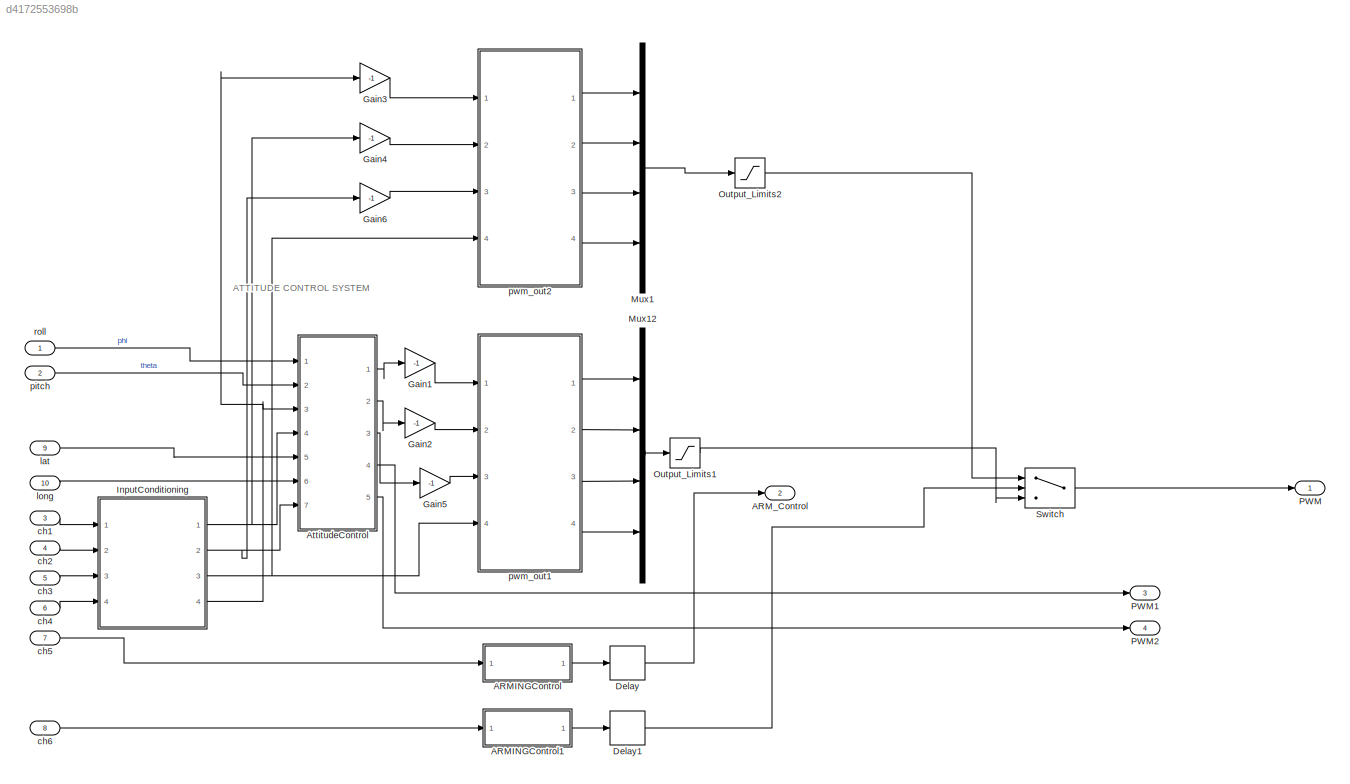
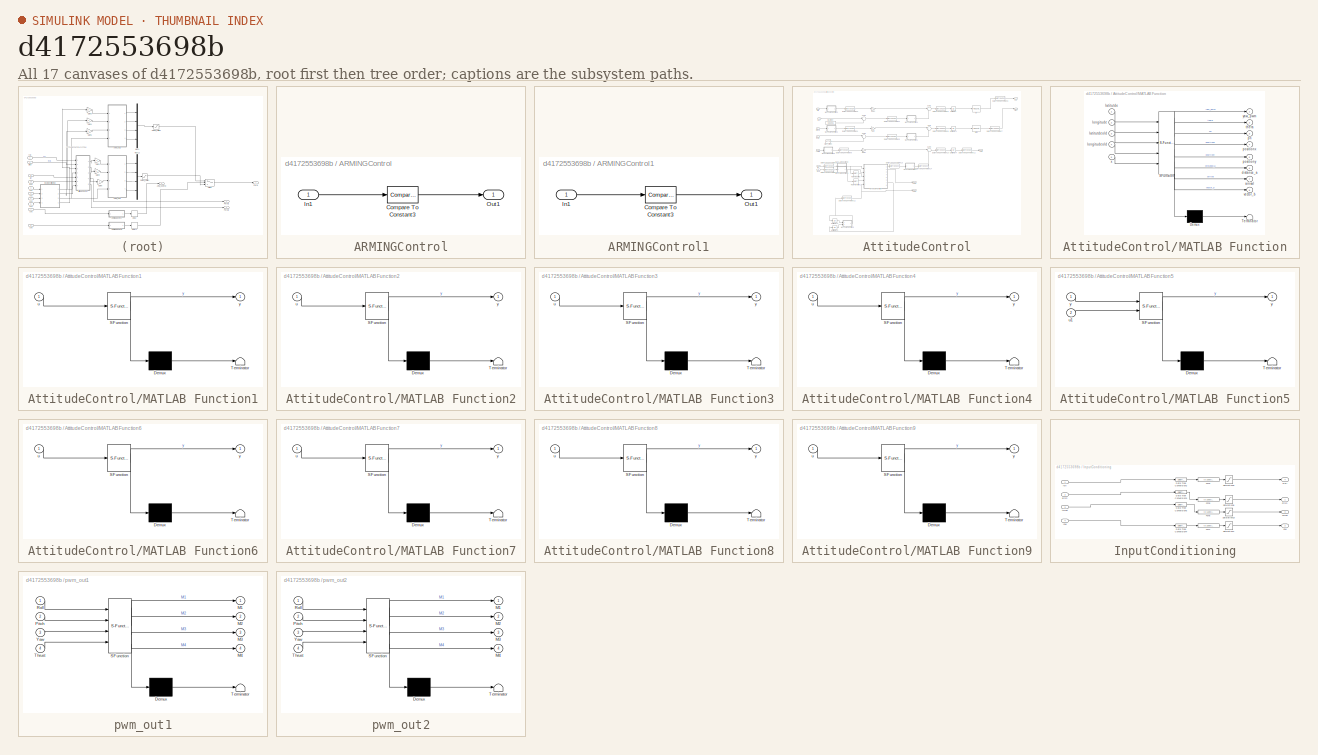
[diagram: thumbnail index - all 17 canvases of the model, root first then tree order]
MODEL slx_d4172553698b
KIND model
CONFIG AbsTol = auto
CONFIG EnableMultiTasking = off
CONFIG FixedStep = auto
CONFIG MaxStep = auto
CONFIG MinStep = auto
CONFIG PostLoadFcn = kFactor = 1.2;\n\nKpRollAttitude = 0.630138625117681 / kFactor;\nKiRollAttitude = 0.0552303199591522 / kFactor;\n\nKpPitchAttitude = 0.630138625117681 / kFactor;\nKiPitchAttitude = 0.0552303199591522 / kFactor;\n\nKpRollRate = 1.31533836563383 / kFactor;\nKiRollRate = 0.460338699849681 / kFactor;\n\nKpPitchRate = 1.31533836563383 / kFactor;\nKiPitchRate = 0.460338699849681 / kFactor;\n\nKpYawRate = 1.3153383656...<+57ch>
CONFIG RelTol = 1e-3
CONFIG SampleTimeConstraint = Unconstrained
CONFIG Solver = FixedStepDiscrete
CONFIG SolverName = FixedStepDiscrete
CONFIG StartTime = 0.0
CONFIG StopTime = inf
BLOCK [SubSystem] ARMINGControl
  Ports = [1, 1]
  RequestExecContextInheritance = off
  Variant = off
BLOCK [Reference] ARMINGControl/Compare To Constant3  REF=simulink/Logic and Bit
Operations/Compare
To Constant
  Ports = [1, 1]
  SourceBlock = simulink/Logic and Bit\nOperations/Compare\nTo Constant
  SourceType = Compare To Constant
BLOCK [Inport] ARMINGControl/In1
  IconDisplay = Port number
BLOCK [Outport] ARMINGControl/Out1
  IconDisplay = Port number
BLOCK [SubSystem] ARMINGControl1
  Ports = [1, 1]
  RequestExecContextInheritance = off
  Variant = off
BLOCK [Reference] ARMINGControl1/Compare To Constant3  REF=simulink/Logic and Bit
Operations/Compare
To Constant
  Ports = [1, 1]
  SourceBlock = simulink/Logic and Bit\nOperations/Compare\nTo Constant
  SourceType = Compare To Constant
BLOCK [Inport] ARMINGControl1/In1
  IconDisplay = Port number
BLOCK [Outport] ARMINGControl1/Out1
  IconDisplay = Port number
BLOCK [Outport] ARM_Control
  IconDisplay = Port number
  Port = 2
  PortDimensions = 1
  SamplingMode = Sample based
  SignalType = real
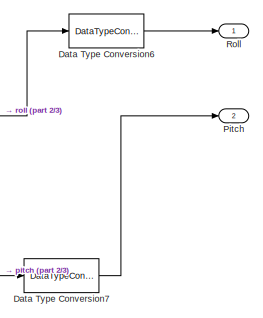
[diagram: AttitudeControl - part 1/3, top right region]
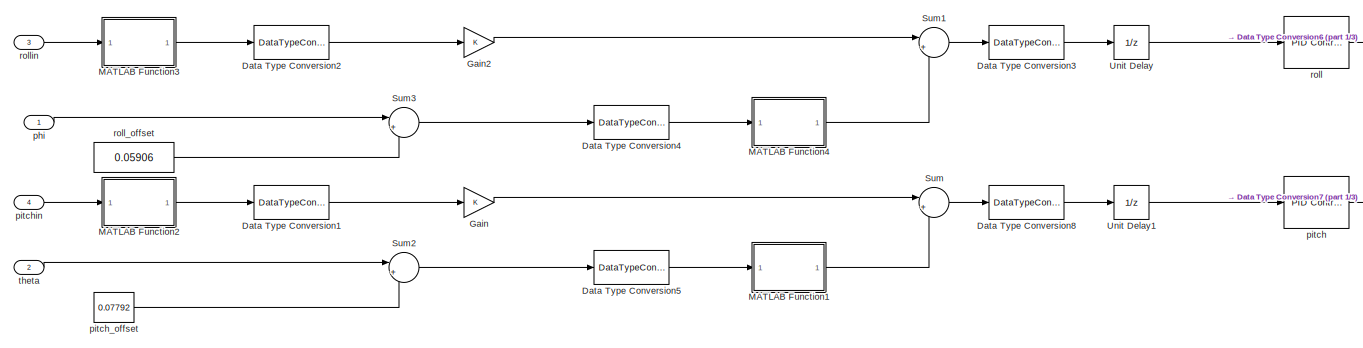
[diagram: AttitudeControl - part 2/3, full width, top band]
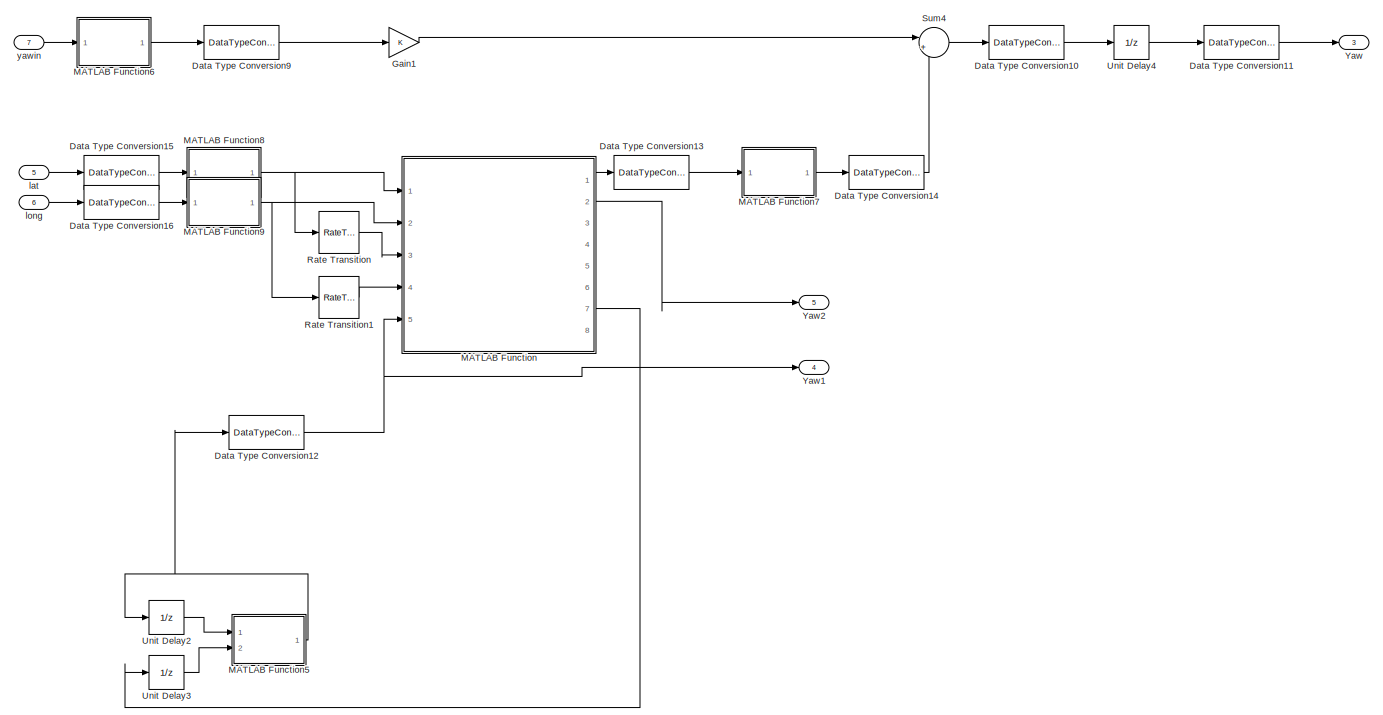
[diagram: AttitudeControl - part 3/3, full width, bottom band]
BLOCK [SubSystem] AttitudeControl
  Ports = [7, 5]
  RequestExecContextInheritance = off
  Variant = off
BLOCK [DataTypeConversion] AttitudeControl/Data Type Conversion1
  OutDataTypeStr = single
  RndMeth = Floor
  SaturateOnIntegerOverflow = off
BLOCK [DataTypeConversion] AttitudeControl/Data Type Conversion10
  OutDataTypeStr = double
  RndMeth = Floor
  SaturateOnIntegerOverflow = off
BLOCK [DataTypeConversion] AttitudeControl/Data Type Conversion11
  OutDataTypeStr = single
  RndMeth = Floor
  SaturateOnIntegerOverflow = off
BLOCK [DataTypeConversion] AttitudeControl/Data Type Conversion12
  OutDataTypeStr = single
  RndMeth = Floor
  SaturateOnIntegerOverflow = off
BLOCK [DataTypeConversion] AttitudeControl/Data Type Conversion13
  OutDataTypeStr = double
  RndMeth = Floor
  SaturateOnIntegerOverflow = off
BLOCK [DataTypeConversion] AttitudeControl/Data Type Conversion14
  OutDataTypeStr = single
  RndMeth = Floor
  SaturateOnIntegerOverflow = off
BLOCK [DataTypeConversion] AttitudeControl/Data Type Conversion15
  OutDataTypeStr = single
  RndMeth = Floor
  SaturateOnIntegerOverflow = off
BLOCK [DataTypeConversion] AttitudeControl/Data Type Conversion16
  OutDataTypeStr = single
  RndMeth = Floor
  SaturateOnIntegerOverflow = off
BLOCK [DataTypeConversion] AttitudeControl/Data Type Conversion2
  OutDataTypeStr = single
  RndMeth = Floor
  SaturateOnIntegerOverflow = off
BLOCK [DataTypeConversion] AttitudeControl/Data Type Conversion3
  OutDataTypeStr = double
  RndMeth = Floor
  SaturateOnIntegerOverflow = off
BLOCK [DataTypeConversion] AttitudeControl/Data Type Conversion4
  OutDataTypeStr = single
  RndMeth = Floor
  SaturateOnIntegerOverflow = off
BLOCK [DataTypeConversion] AttitudeControl/Data Type Conversion5
  OutDataTypeStr = single
  RndMeth = Floor
  SaturateOnIntegerOverflow = off
BLOCK [DataTypeConversion] AttitudeControl/Data Type Conversion6
  OutDataTypeStr = single
  RndMeth = Floor
  SaturateOnIntegerOverflow = off
BLOCK [DataTypeConversion] AttitudeControl/Data Type Conversion7
  OutDataTypeStr = single
  RndMeth = Floor
  SaturateOnIntegerOverflow = off
BLOCK [DataTypeConversion] AttitudeControl/Data Type Conversion8
  OutDataTypeStr = double
  RndMeth = Floor
  SaturateOnIntegerOverflow = off
BLOCK [DataTypeConversion] AttitudeControl/Data Type Conversion9
  OutDataTypeStr = single
  RndMeth = Floor
  SaturateOnIntegerOverflow = off
BLOCK [Gain] AttitudeControl/Gain
  OutDataTypeStr = Inherit: Inherit via internal rule
  ParamDataTypeStr = Inherit: Inherit via internal rule
  SaturateOnIntegerOverflow = off
BLOCK [Gain] AttitudeControl/Gain1
  OutDataTypeStr = Inherit: Inherit via internal rule
  ParamDataTypeStr = Inherit: Inherit via internal rule
  SaturateOnIntegerOverflow = off
BLOCK [Gain] AttitudeControl/Gain2
  OutDataTypeStr = Inherit: Inherit via internal rule
  ParamDataTypeStr = Inherit: Inherit via internal rule
  SaturateOnIntegerOverflow = off
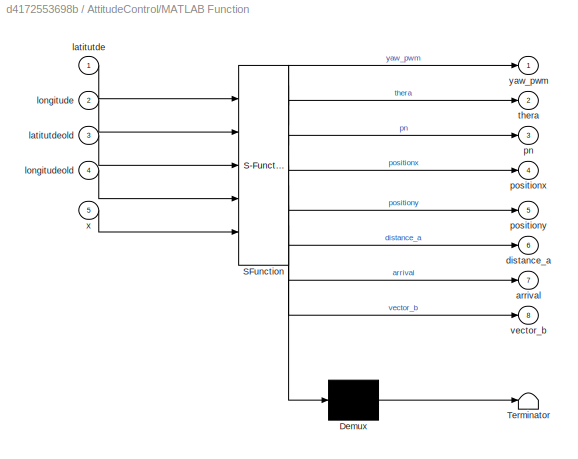
BLOCK [SubSystem] AttitudeControl/MATLAB Function
  ErrorFcn = Stateflow.Translate.translate
  PermitHierarchicalResolution = ExplicitOnly
  Ports = [5, 8]
  RequestExecContextInheritance = off
  SFBlockType = MATLAB Function
  TreatAsAtomicUnit = on
  Variant = off
BLOCK [Demux] AttitudeControl/MATLAB Function/ Demux 
  Outputs = 1
  Ports = [1, 1]
BLOCK [S-Function] AttitudeControl/MATLAB Function/ SFunction 
  EnableBusSupport = on
  FunctionName = sf_sfun
  PortCounts = [5 9]
  Ports = [5, 9]
  SFcnIsStateOwnerBlock = off
  SFunctionDeploymentMode = off
  Tag = Stateflow S-Function px4demo_attitude_control20180822 2
BLOCK [Terminator] AttitudeControl/MATLAB Function/ Terminator 
BLOCK [Outport] AttitudeControl/MATLAB Function/arrival
  IconDisplay = Port number
  Port = 7
BLOCK [Outport] AttitudeControl/MATLAB Function/distance_a
  IconDisplay = Port number
  Port = 6
BLOCK [Inport] AttitudeControl/MATLAB Function/latitutde
  IconDisplay = Port number
BLOCK [Inport] AttitudeControl/MATLAB Function/latitutdeold
  IconDisplay = Port number
  Port = 3
BLOCK [Inport] AttitudeControl/MATLAB Function/longitude
  IconDisplay = Port number
  Port = 2
BLOCK [Inport] AttitudeControl/MATLAB Function/longitudeold
  IconDisplay = Port number
  Port = 4
BLOCK [Outport] AttitudeControl/MATLAB Function/pn
  IconDisplay = Port number
  Port = 3
BLOCK [Outport] AttitudeControl/MATLAB Function/positionx
  IconDisplay = Port number
  Port = 4
BLOCK [Outport] AttitudeControl/MATLAB Function/positiony
  IconDisplay = Port number
  Port = 5
BLOCK [Outport] AttitudeControl/MATLAB Function/thera
  IconDisplay = Port number
  Port = 2
BLOCK [Outport] AttitudeControl/MATLAB Function/vector_b
  IconDisplay = Port number
  Port = 8
BLOCK [Inport] AttitudeControl/MATLAB Function/x
  IconDisplay = Port number
  Port = 5
BLOCK [Outport] AttitudeControl/MATLAB Function/yaw_pwm
  IconDisplay = Port number
BLOCK [SubSystem] AttitudeControl/MATLAB Function1
  ErrorFcn = Stateflow.Translate.translate
  PermitHierarchicalResolution = ExplicitOnly
  Ports = [1, 1]
  RequestExecContextInheritance = off
  SFBlockType = MATLAB Function
  TreatAsAtomicUnit = on
  Variant = off
BLOCK [Demux] AttitudeControl/MATLAB Function1/ Demux 
  Outputs = 1
  Ports = [1, 1]
BLOCK [S-Function] AttitudeControl/MATLAB Function1/ SFunction 
  EnableBusSupport = on
  FunctionName = sf_sfun
  PortCounts = [1 2]
  Ports = [1, 2]
  SFcnIsStateOwnerBlock = off
  SFunctionDeploymentMode = off
  Tag = Stateflow S-Function px4demo_attitude_control20180822 1
BLOCK [Terminator] AttitudeControl/MATLAB Function1/ Terminator 
BLOCK [Inport] AttitudeControl/MATLAB Function1/u
  IconDisplay = Port number
BLOCK [Outport] AttitudeControl/MATLAB Function1/y
  IconDisplay = Port number
BLOCK [SubSystem] AttitudeControl/MATLAB Function2
  ErrorFcn = Stateflow.Translate.translate
  PermitHierarchicalResolution = ExplicitOnly
  Ports = [1, 1]
  RequestExecContextInheritance = off
  SFBlockType = MATLAB Function
  TreatAsAtomicUnit = on
  Variant = off
BLOCK [Demux] AttitudeControl/MATLAB Function2/ Demux 
  Outputs = 1
  Ports = [1, 1]
BLOCK [S-Function] AttitudeControl/MATLAB Function2/ SFunction 
  EnableBusSupport = on
  FunctionName = sf_sfun
  PortCounts = [1 2]
  Ports = [1, 2]
  SFcnIsStateOwnerBlock = off
  SFunctionDeploymentMode = off
  Tag = Stateflow S-Function px4demo_attitude_control20180822 5
BLOCK [Terminator] AttitudeControl/MATLAB Function2/ Terminator 
BLOCK [Inport] AttitudeControl/MATLAB Function2/u
  IconDisplay = Port number
BLOCK [Outport] AttitudeControl/MATLAB Function2/y
  IconDisplay = Port number
BLOCK [SubSystem] AttitudeControl/MATLAB Function3
  ErrorFcn = Stateflow.Translate.translate
  PermitHierarchicalResolution = ExplicitOnly
  Ports = [1, 1]
  RequestExecContextInheritance = off
  SFBlockType = MATLAB Function
  TreatAsAtomicUnit = on
  Variant = off
BLOCK [Demux] AttitudeControl/MATLAB Function3/ Demux 
  Outputs = 1
  Ports = [1, 1]
BLOCK [S-Function] AttitudeControl/MATLAB Function3/ SFunction 
  EnableBusSupport = on
  FunctionName = sf_sfun
  PortCounts = [1 2]
  Ports = [1, 2]
  SFcnIsStateOwnerBlock = off
  SFunctionDeploymentMode = off
  Tag = Stateflow S-Function px4demo_attitude_control20180822 3
BLOCK [Terminator] AttitudeControl/MATLAB Function3/ Terminator 
BLOCK [Inport] AttitudeControl/MATLAB Function3/u
  IconDisplay = Port number
BLOCK [Outport] AttitudeControl/MATLAB Function3/y
  IconDisplay = Port number
BLOCK [SubSystem] AttitudeControl/MATLAB Function4
  ErrorFcn = Stateflow.Translate.translate
  PermitHierarchicalResolution = ExplicitOnly
  Ports = [1, 1]
  RequestExecContextInheritance = off
  SFBlockType = MATLAB Function
  TreatAsAtomicUnit = on
  Variant = off
BLOCK [Demux] AttitudeControl/MATLAB Function4/ Demux 
  Outputs = 1
  Ports = [1, 1]
BLOCK [S-Function] AttitudeControl/MATLAB Function4/ SFunction 
  EnableBusSupport = on
  FunctionName = sf_sfun
  PortCounts = [1 2]
  Ports = [1, 2]
  SFcnIsStateOwnerBlock = off
  SFunctionDeploymentMode = off
  Tag = Stateflow S-Function px4demo_attitude_control20180822 6
BLOCK [Terminator] AttitudeControl/MATLAB Function4/ Terminator 
BLOCK [Inport] AttitudeControl/MATLAB Function4/u
  IconDisplay = Port number
BLOCK [Outport] AttitudeControl/MATLAB Function4/y
  IconDisplay = Port number
BLOCK [SubSystem] AttitudeControl/MATLAB Function5
  ErrorFcn = Stateflow.Translate.translate
  PermitHierarchicalResolution = ExplicitOnly
  Ports = [2, 1]
  RequestExecContextInheritance = off
  SFBlockType = MATLAB Function
  TreatAsAtomicUnit = on
  Variant = off
BLOCK [Demux] AttitudeControl/MATLAB Function5/ Demux 
  Outputs = 1
  Ports = [1, 1]
BLOCK [S-Function] AttitudeControl/MATLAB Function5/ SFunction 
  EnableBusSupport = on
  FunctionName = sf_sfun
  PortCounts = [2 2]
  Ports = [2, 2]
  SFcnIsStateOwnerBlock = off
  SFunctionDeploymentMode = off
  Tag = Stateflow S-Function px4demo_attitude_control20180822 7
BLOCK [Terminator] AttitudeControl/MATLAB Function5/ Terminator 
BLOCK [Inport] AttitudeControl/MATLAB Function5/u1
  IconDisplay = Port number
  Port = 2
BLOCK [Outport] AttitudeControl/MATLAB Function5/y
  IconDisplay = Port number
BLOCK [Inport] AttitudeControl/MATLAB Function5/y 
  IconDisplay = Port number
BLOCK [SubSystem] AttitudeControl/MATLAB Function6
  ErrorFcn = Stateflow.Translate.translate
  PermitHierarchicalResolution = ExplicitOnly
  Ports = [1, 1]
  RequestExecContextInheritance = off
  SFBlockType = MATLAB Function
  TreatAsAtomicUnit = on
  Variant = off
BLOCK [Demux] AttitudeControl/MATLAB Function6/ Demux 
  Outputs = 1
  Ports = [1, 1]
BLOCK [S-Function] AttitudeControl/MATLAB Function6/ SFunction 
  EnableBusSupport = on
  FunctionName = sf_sfun
  PortCounts = [1 2]
  Ports = [1, 2]
  SFcnIsStateOwnerBlock = off
  SFunctionDeploymentMode = off
  Tag = Stateflow S-Function px4demo_attitude_control20180822 8
BLOCK [Terminator] AttitudeControl/MATLAB Function6/ Terminator 
BLOCK [Inport] AttitudeControl/MATLAB Function6/u
  IconDisplay = Port number
BLOCK [Outport] AttitudeControl/MATLAB Function6/y
  IconDisplay = Port number
BLOCK [SubSystem] AttitudeControl/MATLAB Function7
  ErrorFcn = Stateflow.Translate.translate
  PermitHierarchicalResolution = ExplicitOnly
  Ports = [1, 1]
  RequestExecContextInheritance = off
  SFBlockType = MATLAB Function
  TreatAsAtomicUnit = on
  Variant = off
BLOCK [Demux] AttitudeControl/MATLAB Function7/ Demux 
  Outputs = 1
  Ports = [1, 1]
BLOCK [S-Function] AttitudeControl/MATLAB Function7/ SFunction 
  EnableBusSupport = on
  FunctionName = sf_sfun
  PortCounts = [1 2]
  Ports = [1, 2]
  SFcnIsStateOwnerBlock = off
  SFunctionDeploymentMode = off
  Tag = Stateflow S-Function px4demo_attitude_control20180822 9
BLOCK [Terminator] AttitudeControl/MATLAB Function7/ Terminator 
BLOCK [Inport] AttitudeControl/MATLAB Function7/u
  IconDisplay = Port number
BLOCK [Outport] AttitudeControl/MATLAB Function7/y
  IconDisplay = Port number
BLOCK [SubSystem] AttitudeControl/MATLAB Function8
  ErrorFcn = Stateflow.Translate.translate
  PermitHierarchicalResolution = ExplicitOnly
  Ports = [1, 1]
  RequestExecContextInheritance = off
  SFBlockType = MATLAB Function
  TreatAsAtomicUnit = on
  Variant = off
BLOCK [Demux] AttitudeControl/MATLAB Function8/ Demux 
  Outputs = 1
  Ports = [1, 1]
BLOCK [S-Function] AttitudeControl/MATLAB Function8/ SFunction 
  EnableBusSupport = on
  FunctionName = sf_sfun
  PortCounts = [1 2]
  Ports = [1, 2]
  SFcnIsStateOwnerBlock = off
  SFunctionDeploymentMode = off
  Tag = Stateflow S-Function px4demo_attitude_control20180822 11
BLOCK [Terminator] AttitudeControl/MATLAB Function8/ Terminator 
BLOCK [Inport] AttitudeControl/MATLAB Function8/u
  IconDisplay = Port number
BLOCK [Outport] AttitudeControl/MATLAB Function8/y
  IconDisplay = Port number
BLOCK [SubSystem] AttitudeControl/MATLAB Function9
  ErrorFcn = Stateflow.Translate.translate
  PermitHierarchicalResolution = ExplicitOnly
  Ports = [1, 1]
  RequestExecContextInheritance = off
  SFBlockType = MATLAB Function
  TreatAsAtomicUnit = on
  Variant = off
BLOCK [Demux] AttitudeControl/MATLAB Function9/ Demux 
  Outputs = 1
  Ports = [1, 1]
BLOCK [S-Function] AttitudeControl/MATLAB Function9/ SFunction 
  EnableBusSupport = on
  FunctionName = sf_sfun
  PortCounts = [1 2]
  Ports = [1, 2]
  SFcnIsStateOwnerBlock = off
  SFunctionDeploymentMode = off
  Tag = Stateflow S-Function px4demo_attitude_control20180822 12
BLOCK [Terminator] AttitudeControl/MATLAB Function9/ Terminator 
BLOCK [Inport] AttitudeControl/MATLAB Function9/u
  IconDisplay = Port number
BLOCK [Outport] AttitudeControl/MATLAB Function9/y
  IconDisplay = Port number
BLOCK [Outport] AttitudeControl/Pitch
  IconDisplay = Port number
  Port = 2
BLOCK [RateTransition] AttitudeControl/Rate Transition
  OutPortSampleTime = 10
  X0 = 1
BLOCK [RateTransition] AttitudeControl/Rate Transition1
  OutPortSampleTime = 10
  X0 = 1
BLOCK [Outport] AttitudeControl/Roll
  IconDisplay = Port number
BLOCK [Sum] AttitudeControl/Sum
  IconShape = round
  InputSameDT = off
  Inputs = |+-
  OutDataTypeStr = Inherit: Inherit via internal rule
  Ports = [2, 1]
  SaturateOnIntegerOverflow = off
BLOCK [Sum] AttitudeControl/Sum1
  IconShape = round
  InputSameDT = off
  Inputs = |+-
  OutDataTypeStr = Inherit: Inherit via internal rule
  Ports = [2, 1]
  SaturateOnIntegerOverflow = off
BLOCK [Sum] AttitudeControl/Sum2
  IconShape = round
  InputSameDT = off
  Inputs = |+-
  OutDataTypeStr = Inherit: Inherit via internal rule
  Ports = [2, 1]
  SaturateOnIntegerOverflow = off
BLOCK [Sum] AttitudeControl/Sum3
  IconShape = round
  InputSameDT = off
  Inputs = |+-
  OutDataTypeStr = Inherit: Inherit via internal rule
  Ports = [2, 1]
  SaturateOnIntegerOverflow = off
BLOCK [Sum] AttitudeControl/Sum4
  IconShape = round
  InputSameDT = off
  Inputs = |+-
  OutDataTypeStr = Inherit: Inherit via internal rule
  Ports = [2, 1]
  SaturateOnIntegerOverflow = off
BLOCK [UnitDelay] AttitudeControl/Unit Delay
  InputProcessing = Elements as channels (sample based)
  SampleTime = 0.1
BLOCK [UnitDelay] AttitudeControl/Unit Delay1
  InputProcessing = Elements as channels (sample based)
  SampleTime = 0.1
BLOCK [UnitDelay] AttitudeControl/Unit Delay2
  InitialCondition = 1
  InputProcessing = Elements as channels (sample based)
  SampleTime = -1
BLOCK [UnitDelay] AttitudeControl/Unit Delay3
  InputProcessing = Elements as channels (sample based)
  SampleTime = 0.1
BLOCK [UnitDelay] AttitudeControl/Unit Delay4
  InputProcessing = Elements as channels (sample based)
  SampleTime = 0.1
BLOCK [Outport] AttitudeControl/Yaw
  IconDisplay = Port number
  Port = 3
BLOCK [Outport] AttitudeControl/Yaw1
  IconDisplay = Port number
  Port = 4
BLOCK [Outport] AttitudeControl/Yaw2
  IconDisplay = Port number
  Port = 5
BLOCK [Inport] AttitudeControl/lat
  IconDisplay = Port number
  Port = 5
BLOCK [Inport] AttitudeControl/long
  IconDisplay = Port number
  Port = 6
BLOCK [Inport] AttitudeControl/phi
  IconDisplay = Port number
BLOCK [Reference] AttitudeControl/pitch  REF=simulink/Continuous/PID Controller
  Ports = [1, 1]
  SourceBlock = simulink/Continuous/PID Controller
  SourceType = PID 1dof
BLOCK [Constant] AttitudeControl/pitch_offset
  OutDataTypeStr = single
  Value = 0.07792
BLOCK [Inport] AttitudeControl/pitchin
  IconDisplay = Port number
  Port = 4
BLOCK [Reference] AttitudeControl/roll  REF=simulink/Continuous/PID Controller
  Ports = [1, 1]
  SourceBlock = simulink/Continuous/PID Controller
  SourceType = PID 1dof
BLOCK [Constant] AttitudeControl/roll_offset
  OutDataTypeStr = single
  Value = 0.05906
BLOCK [Inport] AttitudeControl/rollin
  IconDisplay = Port number
  Port = 3
BLOCK [Inport] AttitudeControl/theta
  IconDisplay = Port number
  Port = 2
BLOCK [Inport] AttitudeControl/yawin
  IconDisplay = Port number
  Port = 7
BLOCK [Delay] Delay
  DelayLength = 1
  InitialCondition = 0
  InputPortMap = u0
  Ports = [1, 1]
BLOCK [Delay] Delay1
  DelayLength = 1
  InitialCondition = 0
  InputPortMap = u0
  Ports = [1, 1]
BLOCK [Gain] Gain1
  Gain = -1
  OutDataTypeStr = Inherit: Inherit via internal rule
  ParamDataTypeStr = Inherit: Inherit via internal rule
  SaturateOnIntegerOverflow = off
BLOCK [Gain] Gain2
  Gain = -1
  OutDataTypeStr = Inherit: Inherit via internal rule
  ParamDataTypeStr = Inherit: Inherit via internal rule
  SaturateOnIntegerOverflow = off
BLOCK [Gain] Gain3
  Gain = -1
  OutDataTypeStr = Inherit: Inherit via internal rule
  ParamDataTypeStr = Inherit: Inherit via internal rule
  SaturateOnIntegerOverflow = off
BLOCK [Gain] Gain4
  Gain = -1
  OutDataTypeStr = Inherit: Inherit via internal rule
  ParamDataTypeStr = Inherit: Inherit via internal rule
  SaturateOnIntegerOverflow = off
BLOCK [Gain] Gain5
  Gain = -1
  OutDataTypeStr = Inherit: Inherit via internal rule
  ParamDataTypeStr = Inherit: Inherit via internal rule
  SaturateOnIntegerOverflow = off
BLOCK [Gain] Gain6
  Gain = -1
  OutDataTypeStr = Inherit: Inherit via internal rule
  ParamDataTypeStr = Inherit: Inherit via internal rule
  SaturateOnIntegerOverflow = off
BLOCK [SubSystem] InputConditioning
  Ports = [4, 4]
  RequestExecContextInheritance = off
  Variant = off
BLOCK [DataTypeConversion] InputConditioning/Data Type Conversion2
  OutDataTypeStr = single
  RndMeth = Floor
  SaturateOnIntegerOverflow = off
BLOCK [DataTypeConversion] InputConditioning/Data Type Conversion3
  OutDataTypeStr = single
  RndMeth = Floor
  SaturateOnIntegerOverflow = off
BLOCK [DataTypeConversion] InputConditioning/Data Type Conversion4
  OutDataTypeStr = single
  RndMeth = Floor
  SaturateOnIntegerOverflow = off
BLOCK [DataTypeConversion] InputConditioning/Data Type Conversion5
  OutDataTypeStr = single
  RndMeth = Floor
  SaturateOnIntegerOverflow = off
BLOCK [Fcn] InputConditioning/Fcn2
  Expr = (u - 1500) / 400
BLOCK [Fcn] InputConditioning/Fcn5
  Expr = (u - 1500) / 400
BLOCK [Fcn] InputConditioning/Fcn6
  Expr = (u - 1100) / 800
BLOCK [Fcn] InputConditioning/Fcn7
  Expr = (u - 1500) / 400
BLOCK [Outport] InputConditioning/Pitch
  IconDisplay = Port number
BLOCK [Outport] InputConditioning/Roll
  IconDisplay = Port number
  Port = 4
BLOCK [Saturate] InputConditioning/Saturation10
  InputPortMap = u0
  LowerLimit = 0
  Ports = [1, 1]
  UpperLimit = 1
BLOCK [Saturate] InputConditioning/Saturation7
  InputPortMap = u0
  LowerLimit = -1
  Ports = [1, 1]
  UpperLimit = 1
BLOCK [Saturate] InputConditioning/Saturation8
  InputPortMap = u0
  LowerLimit = -1
  Ports = [1, 1]
  UpperLimit = 1
BLOCK [Saturate] InputConditioning/Saturation9
  InputPortMap = u0
  LowerLimit = -1
  Ports = [1, 1]
  UpperLimit = 1
BLOCK [Outport] InputConditioning/Thrust
  IconDisplay = Port number
  Port = 3
BLOCK [Outport] InputConditioning/Yaw
  IconDisplay = Port number
  Port = 2
BLOCK [Inport] InputConditioning/pitch
  IconDisplay = Port number
  Port = 2
BLOCK [Inport] InputConditioning/roll
  IconDisplay = Port number
BLOCK [Inport] InputConditioning/thrust
  IconDisplay = Port number
  Port = 3
BLOCK [Inport] InputConditioning/yaw
  IconDisplay = Port number
  Port = 4
BLOCK [Mux] Mux1
  DisplayOption = bar
  Ports = [4, 1]
BLOCK [Mux] Mux12
  DisplayOption = bar
  Ports = [4, 1]
BLOCK [Saturate] Output_Limits1
  InputPortMap = u0
  LowerLimit = 1000
  Ports = [1, 1]
  UpperLimit = 2000
BLOCK [Saturate] Output_Limits2
  InputPortMap = u0
  LowerLimit = 1000
  Ports = [1, 1]
  UpperLimit = 2000
BLOCK [Outport] PWM
  IconDisplay = Port number
  PortDimensions = 4
  SamplingMode = Sample based
  SignalType = real
BLOCK [Outport] PWM1
  IconDisplay = Port number
  Port = 3
  SamplingMode = Sample based
  SignalType = real
BLOCK [Outport] PWM2
  IconDisplay = Port number
  Port = 4
  SamplingMode = Sample based
  SignalType = real
BLOCK [Switch] Switch
  Criteria = u2 > Threshold
  InputSameDT = off
  SaturateOnIntegerOverflow = off
BLOCK [Inport] ch1
  IconDisplay = Port number
  OutDataTypeStr = uint16
  Port = 3
  PortDimensions = 1
  SamplingMode = Sample based
  SignalType = real
BLOCK [Inport] ch2
  IconDisplay = Port number
  OutDataTypeStr = uint16
  Port = 4
  PortDimensions = 1
  SamplingMode = Sample based
  SignalType = real
BLOCK [Inport] ch3
  IconDisplay = Port number
  OutDataTypeStr = uint16
  Port = 5
  PortDimensions = 1
  SamplingMode = Sample based
  SignalType = real
BLOCK [Inport] ch4
  IconDisplay = Port number
  OutDataTypeStr = uint16
  Port = 6
  PortDimensions = 1
  SamplingMode = Sample based
  SignalType = real
BLOCK [Inport] ch5
  IconDisplay = Port number
  Interpolate = off
  OutDataTypeStr = uint16
  Port = 7
  PortDimensions = 1
  SamplingMode = Sample based
  SignalType = real
BLOCK [Inport] ch6
  IconDisplay = Port number
  Interpolate = off
  OutDataTypeStr = uint16
  Port = 8
  PortDimensions = 1
  SamplingMode = Sample based
  SignalType = real
BLOCK [Inport] lat
  IconDisplay = Port number
  Interpolate = off
  OutDataTypeStr = int32
  Port = 9
  PortDimensions = 1
  SamplingMode = Sample based
  SignalType = real
BLOCK [Inport] long
  IconDisplay = Port number
  Interpolate = off
  OutDataTypeStr = int32
  Port = 10
  PortDimensions = 1
  SamplingMode = Sample based
  SignalType = real
BLOCK [Inport] pitch
  IconDisplay = Port number
  Port = 2
  PortDimensions = 1
  SamplingMode = Sample based
  SignalType = real
BLOCK [SubSystem] pwm_out1
  ErrorFcn = Stateflow.Translate.translate
  PermitHierarchicalResolution = ExplicitOnly
  Ports = [4, 4]
  RequestExecContextInheritance = off
  SFBlockType = MATLAB Function
  SystemSampleTime = 0.004
  TreatAsAtomicUnit = on
  Variant = off
BLOCK [Demux] pwm_out1/ Demux 
  Outputs = 1
  Ports = [1, 1]
BLOCK [S-Function] pwm_out1/ SFunction 
  EnableBusSupport = on
  FunctionName = sf_sfun
  PortCounts = [4 5]
  Ports = [4, 5]
  SFcnIsStateOwnerBlock = off
  SFunctionDeploymentMode = off
  Tag = Stateflow S-Function px4demo_attitude_control20180822 4
BLOCK [Terminator] pwm_out1/ Terminator 
BLOCK [Outport] pwm_out1/M1
  IconDisplay = Port number
BLOCK [Outport] pwm_out1/M2
  IconDisplay = Port number
  Port = 2
BLOCK [Outport] pwm_out1/M3
  IconDisplay = Port number
  Port = 3
BLOCK [Outport] pwm_out1/M4
  IconDisplay = Port number
  Port = 4
BLOCK [Inport] pwm_out1/Pitch
  IconDisplay = Port number
  Port = 2
BLOCK [Inport] pwm_out1/Roll
  IconDisplay = Port number
BLOCK [Inport] pwm_out1/Thrust
  IconDisplay = Port number
  Port = 4
BLOCK [Inport] pwm_out1/Yaw
  IconDisplay = Port number
  Port = 3
BLOCK [SubSystem] pwm_out2
  ErrorFcn = Stateflow.Translate.translate
  PermitHierarchicalResolution = ExplicitOnly
  Ports = [4, 4]
  RequestExecContextInheritance = off
  SFBlockType = MATLAB Function
  SystemSampleTime = 0.004
  TreatAsAtomicUnit = on
  Variant = off
BLOCK [Demux] pwm_out2/ Demux 
  Outputs = 1
  Ports = [1, 1]
BLOCK [S-Function] pwm_out2/ SFunction 
  EnableBusSupport = on
  FunctionName = sf_sfun
  PortCounts = [4 5]
  Ports = [4, 5]
  SFcnIsStateOwnerBlock = off
  SFunctionDeploymentMode = off
  Tag = Stateflow S-Function px4demo_attitude_control20180822 10
BLOCK [Terminator] pwm_out2/ Terminator 
BLOCK [Outport] pwm_out2/M1
  IconDisplay = Port number
BLOCK [Outport] pwm_out2/M2
  IconDisplay = Port number
  Port = 2
BLOCK [Outport] pwm_out2/M3
  IconDisplay = Port number
  Port = 3
BLOCK [Outport] pwm_out2/M4
  IconDisplay = Port number
  Port = 4
BLOCK [Inport] pwm_out2/Pitch
  IconDisplay = Port number
  Port = 2
BLOCK [Inport] pwm_out2/Roll
  IconDisplay = Port number
BLOCK [Inport] pwm_out2/Thrust
  IconDisplay = Port number
  Port = 4
BLOCK [Inport] pwm_out2/Yaw
  IconDisplay = Port number
  Port = 3
BLOCK [Inport] roll
  IconDisplay = Port number
  PortDimensions = 1
  SamplingMode = Sample based
  SignalType = real
ANNOTATION (root): ATTITUDE CONTROL SYSTEM
LINE ARMINGControl/Compare To Constant3:1 -> ARMINGControl/Out1:1
LINE ARMINGControl/In1:1 -> ARMINGControl/Compare To Constant3:1
LINE ARMINGControl1/Compare To Constant3:1 -> ARMINGControl1/Out1:1
LINE ARMINGControl1/In1:1 -> ARMINGControl1/Compare To Constant3:1
LINE ARMINGControl1:1 -> Delay1:1
LINE ARMINGControl:1 -> Delay:1
LINE AttitudeControl/Data Type Conversion10:1 -> AttitudeControl/Unit Delay4:1
LINE AttitudeControl/Data Type Conversion11:1 -> AttitudeControl/Yaw:1
NET AttitudeControl/Data Type Conversion12:1 -> AttitudeControl/MATLAB Function:5, AttitudeControl/Yaw1:1
LINE AttitudeControl/Data Type Conversion13:1 -> AttitudeControl/MATLAB Function7:1
LINE AttitudeControl/Data Type Conversion14:1 -> AttitudeControl/Sum4:2
LINE AttitudeControl/Data Type Conversion15:1 -> AttitudeControl/MATLAB Function8:1
LINE AttitudeControl/Data Type Conversion16:1 -> AttitudeControl/MATLAB Function9:1
LINE AttitudeControl/Data Type Conversion1:1 -> AttitudeControl/Gain:1
LINE AttitudeControl/Data Type Conversion2:1 -> AttitudeControl/Gain2:1
LINE AttitudeControl/Data Type Conversion3:1 -> AttitudeControl/Unit Delay:1
LINE AttitudeControl/Data Type Conversion4:1 -> AttitudeControl/MATLAB Function4:1
LINE AttitudeControl/Data Type Conversion5:1 -> AttitudeControl/MATLAB Function1:1
LINE AttitudeControl/Data Type Conversion6:1 -> AttitudeControl/Roll:1
LINE AttitudeControl/Data Type Conversion7:1 -> AttitudeControl/Pitch:1
LINE AttitudeControl/Data Type Conversion8:1 -> AttitudeControl/Unit Delay1:1
LINE AttitudeControl/Data Type Conversion9:1 -> AttitudeControl/Gain1:1
LINE AttitudeControl/Gain1:1 -> AttitudeControl/Sum4:1
LINE AttitudeControl/Gain2:1 -> AttitudeControl/Sum1:1
LINE AttitudeControl/Gain:1 -> AttitudeControl/Sum:1
LINE AttitudeControl/MATLAB Function1:1 -> AttitudeControl/Sum:2
LINE AttitudeControl/MATLAB Function2:1 -> AttitudeControl/Data Type Conversion1:1
LINE AttitudeControl/MATLAB Function3:1 -> AttitudeControl/Data Type Conversion2:1
LINE AttitudeControl/MATLAB Function4:1 -> AttitudeControl/Sum1:2
NET AttitudeControl/MATLAB Function5:1 -> AttitudeControl/Data Type Conversion12:1, AttitudeControl/Unit Delay2:1
LINE AttitudeControl/MATLAB Function6:1 -> AttitudeControl/Data Type Conversion9:1
LINE AttitudeControl/MATLAB Function7:1 -> AttitudeControl/Data Type Conversion14:1
NET AttitudeControl/MATLAB Function8:1 -> AttitudeControl/MATLAB Function:1, AttitudeControl/Rate Transition:1
NET AttitudeControl/MATLAB Function9:1 -> AttitudeControl/MATLAB Function:2, AttitudeControl/Rate Transition1:1
LINE AttitudeControl/MATLAB Function:1 -> AttitudeControl/Data Type Conversion13:1
LINE AttitudeControl/MATLAB Function:2 -> AttitudeControl/Yaw2:1
LINE AttitudeControl/MATLAB Function:7 -> AttitudeControl/Unit Delay3:1
LINE AttitudeControl/Rate Transition1:1 -> AttitudeControl/MATLAB Function:4
LINE AttitudeControl/Rate Transition:1 -> AttitudeControl/MATLAB Function:3
LINE AttitudeControl/Sum1:1 -> AttitudeControl/Data Type Conversion3:1
LINE AttitudeControl/Sum2:1 -> AttitudeControl/Data Type Conversion5:1
LINE AttitudeControl/Sum3:1 -> AttitudeControl/Data Type Conversion4:1
LINE AttitudeControl/Sum4:1 -> AttitudeControl/Data Type Conversion10:1
LINE AttitudeControl/Sum:1 -> AttitudeControl/Data Type Conversion8:1
LINE AttitudeControl/Unit Delay1:1 -> AttitudeControl/pitch:1
LINE AttitudeControl/Unit Delay2:1 -> AttitudeControl/MATLAB Function5:1
LINE AttitudeControl/Unit Delay3:1 -> AttitudeControl/MATLAB Function5:2
LINE AttitudeControl/Unit Delay4:1 -> AttitudeControl/Data Type Conversion11:1
LINE AttitudeControl/Unit Delay:1 -> AttitudeControl/roll:1
LINE AttitudeControl/lat:1 -> AttitudeControl/Data Type Conversion15:1
LINE AttitudeControl/long:1 -> AttitudeControl/Data Type Conversion16:1
LINE AttitudeControl/phi:1 -> AttitudeControl/Sum3:1
LINE AttitudeControl/pitch:1 -> AttitudeControl/Data Type Conversion7:1
LINE AttitudeControl/pitch_offset:1 -> AttitudeControl/Sum2:2
LINE AttitudeControl/pitchin:1 -> AttitudeControl/MATLAB Function2:1
LINE AttitudeControl/roll:1 -> AttitudeControl/Data Type Conversion6:1
LINE AttitudeControl/roll_offset:1 -> AttitudeControl/Sum3:2
LINE AttitudeControl/rollin:1 -> AttitudeControl/MATLAB Function3:1
LINE AttitudeControl/theta:1 -> AttitudeControl/Sum2:1
LINE AttitudeControl/yawin:1 -> AttitudeControl/MATLAB Function6:1
LINE AttitudeControl:1 -> Gain1:1
LINE AttitudeControl:2 -> Gain2:1
LINE AttitudeControl:3 -> Gain5:1
LINE AttitudeControl:4 -> PWM1:1
LINE AttitudeControl:5 -> PWM2:1
LINE Delay1:1 -> Switch:2
LINE Delay:1 -> ARM_Control:1
LINE Gain1:1 -> pwm_out1:1
LINE Gain2:1 -> pwm_out1:2
LINE Gain3:1 -> pwm_out2:1
LINE Gain4:1 -> pwm_out2:2
LINE Gain5:1 -> pwm_out1:3
LINE Gain6:1 -> pwm_out2:3
LINE InputConditioning/Data Type Conversion2:1 -> InputConditioning/Fcn2:1
LINE InputConditioning/Data Type Conversion3:1 -> InputConditioning/Fcn5:1
LINE InputConditioning/Data Type Conversion4:1 -> InputConditioning/Fcn7:1
LINE InputConditioning/Data Type Conversion5:1 -> InputConditioning/Fcn6:1
LINE InputConditioning/Fcn2:1 -> InputConditioning/Saturation9:1
LINE InputConditioning/Fcn5:1 -> InputConditioning/Saturation8:1
LINE InputConditioning/Fcn6:1 -> InputConditioning/Saturation10:1
LINE InputConditioning/Fcn7:1 -> InputConditioning/Saturation7:1
LINE InputConditioning/Saturation10:1 -> InputConditioning/Thrust:1
LINE InputConditioning/Saturation7:1 -> InputConditioning/Yaw:1
LINE InputConditioning/Saturation8:1 -> InputConditioning/Pitch:1
LINE InputConditioning/Saturation9:1 -> InputConditioning/Roll:1
LINE InputConditioning/pitch:1 -> InputConditioning/Data Type Conversion3:1
LINE InputConditioning/roll:1 -> InputConditioning/Data Type Conversion2:1
LINE InputConditioning/thrust:1 -> InputConditioning/Data Type Conversion5:1
LINE InputConditioning/yaw:1 -> InputConditioning/Data Type Conversion4:1
NET InputConditioning:1 -> AttitudeControl:4, Gain4:1
NET InputConditioning:2 -> AttitudeControl:7, Gain6:1
NET InputConditioning:3 -> pwm_out1:4, pwm_out2:4
NET InputConditioning:4 -> AttitudeControl:3, Gain3:1
LINE Mux12:1 -> Output_Limits1:1
LINE Mux1:1 -> Output_Limits2:1
LINE Output_Limits1:1 -> Switch:3
LINE Output_Limits2:1 -> Switch:1
LINE Switch:1 -> PWM:1
LINE ch1:1 -> InputConditioning:1
LINE ch2:1 -> InputConditioning:2
LINE ch3:1 -> InputConditioning:3
LINE ch4:1 -> InputConditioning:4
LINE ch5:1 -> ARMINGControl:1
LINE ch6:1 -> ARMINGControl1:1
LINE lat:1 -> AttitudeControl:5
LINE long:1 -> AttitudeControl:6
LINE pitch:1 -> AttitudeControl:2
LINE pwm_out1:1 -> Mux12:1
LINE pwm_out1:2 -> Mux12:2
LINE pwm_out1:3 -> Mux12:3
LINE pwm_out1:4 -> Mux12:4
LINE pwm_out2:1 -> Mux1:1
LINE pwm_out2:2 -> Mux1:2
LINE pwm_out2:3 -> Mux1:3
LINE pwm_out2:4 -> Mux1:4
LINE roll:1 -> AttitudeControl:1
note: NET lines group one-source signal fan-out (src -> all destinations, sorted); 1:1 wires keep LINE
CHART AttitudeControl/MATLAB Function1 states=1 transitions=1
  STATE_LABEL 'eML_blk_kernel()'
  STATE_LABEL 'SCRIPT:\nfunction y = fcn(u)\n\ny = round(u*10)/10;\n'
CHART AttitudeControl/MATLAB Function states=1 transitions=1
  STATE_LABEL 'eML_blk_kernel()'
  STATE_LABEL 'SCRIPT:\nfunction [yaw_pwm,thera,pn,positionx,positiony,distance_a,arrival,vector_b]  = fcn(latitutde,longitude,latitutdeold,longitudeold,x)\nposition=[251746,1214496;\n          251739,1214476;]\n\n\n\n\nvector_a=[(position(x,1)-latitutde),(position(x,2)-longitude)]\nvector_b=[(latitutdeold-latitutde),(longitudeold-longitude)]\ndot_a_b=vector_a(1,1)*vector_b(1,1)+vector_a(1,2)*vector_b(1,2)\ndistance_a=sqrt...<+582ch>'
CHART AttitudeControl/MATLAB Function3 states=1 transitions=1
  STATE_LABEL 'eML_blk_kernel()'
  STATE_LABEL 'SCRIPT:\nfunction y = fcn(u)\n\ny = round(u*100)/100;\n'
CHART pwm_out1 states=1 transitions=1
  STATE_LABEL 'eML_blk_kernel()'
  STATE_LABEL 'SCRIPT:\nfunction [M1, M2, M3, M4] = motor_mixer(Roll, Pitch, Yaw, Thrust)\n\n%idle_PWM = uint16(1000);\n\n% Quad X\n% M1 = ((Roll + Pitch - Yaw) / 2 * Thrust + Thrust) * 1000 + idle_PWM;\n% M2 = ((-Roll + Pitch + Yaw) / 2 * Thrust + Thrust) * 1000 + idle_PWM;\n% M3 = ((-Roll - Pitch - Yaw) / 2 * Thrust + Thrust) * 1000 + idle_PWM;\n% M4 = ((Roll - Pitch + Yaw) / 2 * Thrust + Thrust) * 1000 + idle_PWM;\n% M...<+1504ch>'
CHART AttitudeControl/MATLAB Function2 states=1 transitions=1
  STATE_LABEL 'eML_blk_kernel()'
  STATE_LABEL 'SCRIPT:\nfunction y = fcn(u)\n\ny = round(u*100)/100;\n'
CHART AttitudeControl/MATLAB Function4 states=1 transitions=1
  STATE_LABEL 'eML_blk_kernel()'
  STATE_LABEL 'SCRIPT:\nfunction y = fcn(u)\n\ny = round(u*10)/10;\n'
CHART AttitudeControl/MATLAB Function5 states=1 transitions=1
  STATE_LABEL 'eML_blk_kernel()'
  STATE_LABEL 'SCRIPT:\nfunction y = fcn(y,u1)\nif(u1 == 1 && y <= 3)\ny = y+1;\nend\nif(y == 3)\ny=1;\nend'
CHART AttitudeControl/MATLAB Function6 states=1 transitions=1
  STATE_LABEL 'eML_blk_kernel()'
  STATE_LABEL 'SCRIPT:\nfunction y = fcn(u)\n\ny = round(u*100)/100;\n'
CHART AttitudeControl/MATLAB Function7 states=1 transitions=1
  STATE_LABEL 'eML_blk_kernel()'
  STATE_LABEL 'SCRIPT:\nfunction y = fcn(u)    \nif(160 < u && u<= 180)\n    y=0\nelseif(-160 > u && u >=-180)\n        y=0\n    elseif(0>u && u>=-160)\n            y=-1\n        elseif(0<=u && u <=160)\n                y=1\n            else\n                y=0\n            end\n'
CHART pwm_out2 states=1 transitions=1
  STATE_LABEL 'eML_blk_kernel()'
  STATE_LABEL 'SCRIPT:\nfunction [M1, M2, M3, M4] = motor_mixer(Roll, Pitch, Yaw, Thrust)\n\n%idle_PWM = uint16(1000);\n\n% Quad X\n% M1 = ((Roll + Pitch - Yaw) / 2 * Thrust + Thrust) * 1000 + idle_PWM;\n% M2 = ((-Roll + Pitch + Yaw) / 2 * Thrust + Thrust) * 1000 + idle_PWM;\n% M3 = ((-Roll - Pitch - Yaw) / 2 * Thrust + Thrust) * 1000 + idle_PWM;\n% M4 = ((Roll - Pitch + Yaw) / 2 * Thrust + Thrust) * 1000 + idle_PWM;\n% M...<+1504ch>'
CHART AttitudeControl/MATLAB Function8 states=1 transitions=1
  STATE_LABEL 'eML_blk_kernel()'
  STATE_LABEL 'SCRIPT:\nfunction y = fcn(u)\n\ny = round(u/1000);\n'
CHART AttitudeControl/MATLAB Function9 states=1 transitions=1
  STATE_LABEL 'eML_blk_kernel()'
  STATE_LABEL 'SCRIPT:\nfunction y = fcn(u)\n\ny = round(u/1000);\n'
